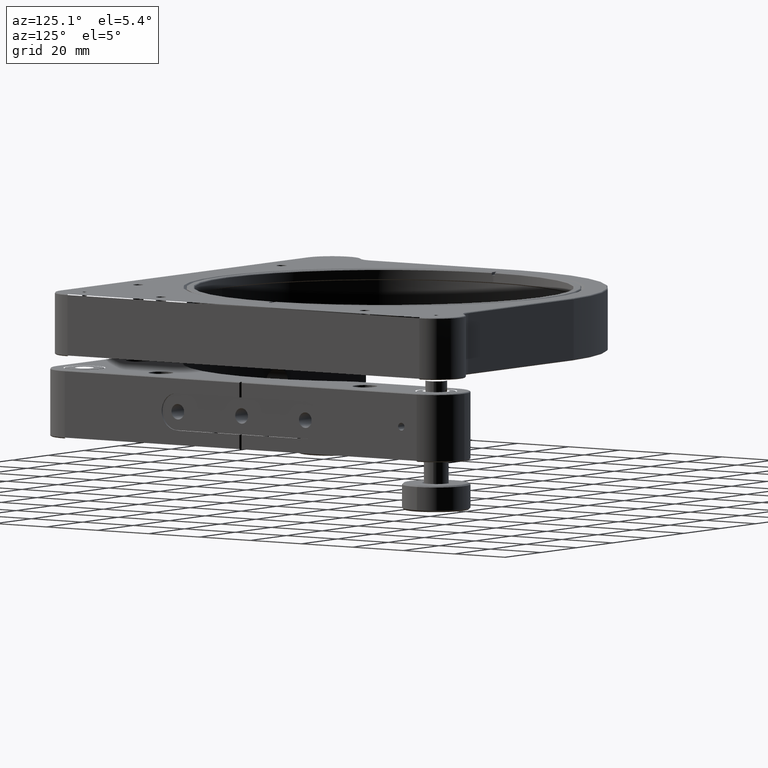
[diagram: clean part render]
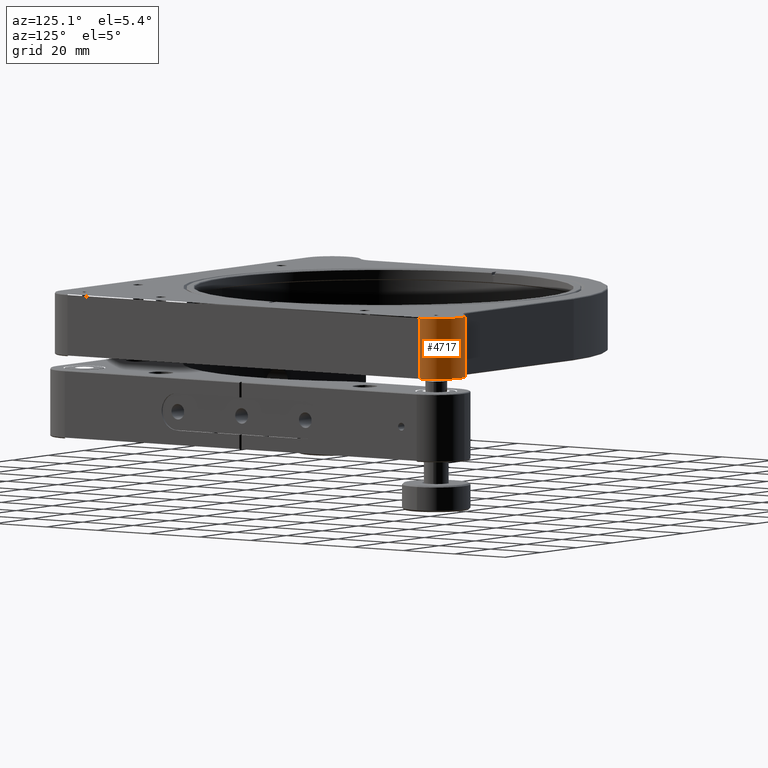
[diagram: same view with one face highlighted and labeled with its STEP entity id]
A machine part, auxiliary view. The second image highlights one B-rep face of the part: STEP entity #4717.
In plain terms, the highlighted cylindrical surface (edge-blend (fillet) strip) has radius 9.5 mm, axis along (-0, 0, -1).
Its self-contained STEP definition (entity closure, byte-faithful):
#417 = CARTESIAN_POINT ( 'NONE',  ( 61.57425023091976612, 74.92522070196577033, 35.14949493661170266 ) ) ;
#514 = DIRECTION ( 'NONE',  ( 1.460576560598799511E-21, -4.894246277413214072E-36, 1.000000000000000000 ) ) ;
#698 = VECTOR ( 'NONE', #7174, 1000.000000000000000 ) ;
#801 = EDGE_CURVE ( 'NONE', #1858, #15678, #15982, .T. ) ;
#867 = VERTEX_POINT ( 'NONE', #1537 ) ;
#1045 = EDGE_LOOP ( 'NONE', ( #12026, #5699, #16427, #11233, #9808 ) ) ;
#1537 = CARTESIAN_POINT ( 'NONE',  ( 69.00000000000059686, 78.50000000000073896, 15.64949493661167423 ) ) ;
#1737 = EDGE_CURVE ( 'NONE', #15678, #7194, #9272, .T. ) ;
#1858 = VERTEX_POINT ( 'NONE', #3004 ) ;
#3004 = CARTESIAN_POINT ( 'NONE',  ( 61.57425023091976612, 74.92522070196577033, 15.64949493661167423 ) ) ;
#3174 = EDGE_CURVE ( 'NONE', #8916, #7194, #16255, .T. ) ;
#3191 = CARTESIAN_POINT ( 'NONE',  ( 69.00000000000059686, 69.00000000000063949, 15.64949493661167423 ) ) ;
#3209 = EDGE_CURVE ( 'NONE', #867, #1858, #8444, .T. ) ;
#4717 = ADVANCED_FACE ( 'NONE', ( #6853 ), #6934, .T. ) ;
#5284 = CARTESIAN_POINT ( 'NONE',  ( 69.00000000000059686, 69.00000000000063949, 15.64949493661167423 ) ) ;
#5594 = CARTESIAN_POINT ( 'NONE',  ( 78.50000000000058265, 69.00000000000066791, 35.14949493661170266 ) ) ;
#5699 = ORIENTED_EDGE ( 'NONE', *, *, #9854, .T. ) ;
#5714 = CARTESIAN_POINT ( 'NONE',  ( 78.50000000000058265, 69.00000000000066791, 15.64949493661167423 ) ) ;
#6563 = DIRECTION ( 'NONE',  ( 0.000000000000000000, 1.000000000000000000, 0.000000000000000000 ) ) ;
#6853 = FACE_OUTER_BOUND ( 'NONE', #1045, .T. ) ;
#6934 = CYLINDRICAL_SURFACE ( 'NONE', #9662, 9.500000000000099476 ) ;
#7064 = AXIS2_PLACEMENT_3D ( 'NONE', #3191, #514, #13812 ) ;
#7137 = DIRECTION ( 'NONE',  ( 1.460576560598799511E-21, -4.894246277413214072E-36, 1.000000000000000000 ) ) ;
#7174 = DIRECTION ( 'NONE',  ( 1.460576560598799511E-21, -4.894246277413214072E-36, 1.000000000000000000 ) ) ;
#7194 = VERTEX_POINT ( 'NONE', #5594 ) ;
#7893 = AXIS2_PLACEMENT_3D ( 'NONE', #14585, #16935, #6563 ) ;
#7964 = DIRECTION ( 'NONE',  ( 0.000000000000000000, 1.000000000000000000, 0.000000000000000000 ) ) ;
#8444 = CIRCLE ( 'NONE', #7064, 9.500000000000092371 ) ;
#8916 = VERTEX_POINT ( 'NONE', #5714 ) ;
#9272 = CIRCLE ( 'NONE', #7893, 9.500000000000092371 ) ;
#9662 = AXIS2_PLACEMENT_3D ( 'NONE', #16023, #14698, #9692 ) ;
#9692 = DIRECTION ( 'NONE',  ( 0.000000000000000000, -1.000000000000000000, 0.000000000000000000 ) ) ;
#9808 = ORIENTED_EDGE ( 'NONE', *, *, #1737, .T. ) ;
#9854 = EDGE_CURVE ( 'NONE', #8916, #867, #15029, .T. ) ;
#9891 = CARTESIAN_POINT ( 'NONE',  ( 61.57425023091976612, 74.92522070196577033, 35.39949493661167423 ) ) ;
#10796 = DIRECTION ( 'NONE',  ( 1.460576560598799511E-21, -4.894246277413214072E-36, 1.000000000000000000 ) ) ;
#10880 = AXIS2_PLACEMENT_3D ( 'NONE', #5284, #10796, #7964 ) ;
#11233 = ORIENTED_EDGE ( 'NONE', *, *, #801, .T. ) ;
#12026 = ORIENTED_EDGE ( 'NONE', *, *, #3174, .F. ) ;
#13812 = DIRECTION ( 'NONE',  ( 0.000000000000000000, 1.000000000000000000, 0.000000000000000000 ) ) ;
#14585 = CARTESIAN_POINT ( 'NONE',  ( 69.00000000000059686, 69.00000000000063949, 35.14949493661170266 ) ) ;
#14698 = DIRECTION ( 'NONE',  ( -1.460576560598799511E-21, 4.894246277413214072E-36, -1.000000000000000000 ) ) ;
#15029 = CIRCLE ( 'NONE', #10880, 9.500000000000092371 ) ;
#15314 = VECTOR ( 'NONE', #7137, 1000.000000000000000 ) ;
#15678 = VERTEX_POINT ( 'NONE', #417 ) ;
#15982 = LINE ( 'NONE', #9891, #15314 ) ;
#16023 = CARTESIAN_POINT ( 'NONE',  ( 69.00000000000059686, 69.00000000000063949, 35.39949493661167423 ) ) ;
#16255 = LINE ( 'NONE', #16342, #698 ) ;
#16342 = CARTESIAN_POINT ( 'NONE',  ( 78.50000000000058265, 69.00000000000066791, 35.39949493661167423 ) ) ;
#16427 = ORIENTED_EDGE ( 'NONE', *, *, #3209, .T. ) ;
#16935 = DIRECTION ( 'NONE',  ( -1.460576560598799511E-21, 4.894246277413214072E-36, -1.000000000000000000 ) ) ;